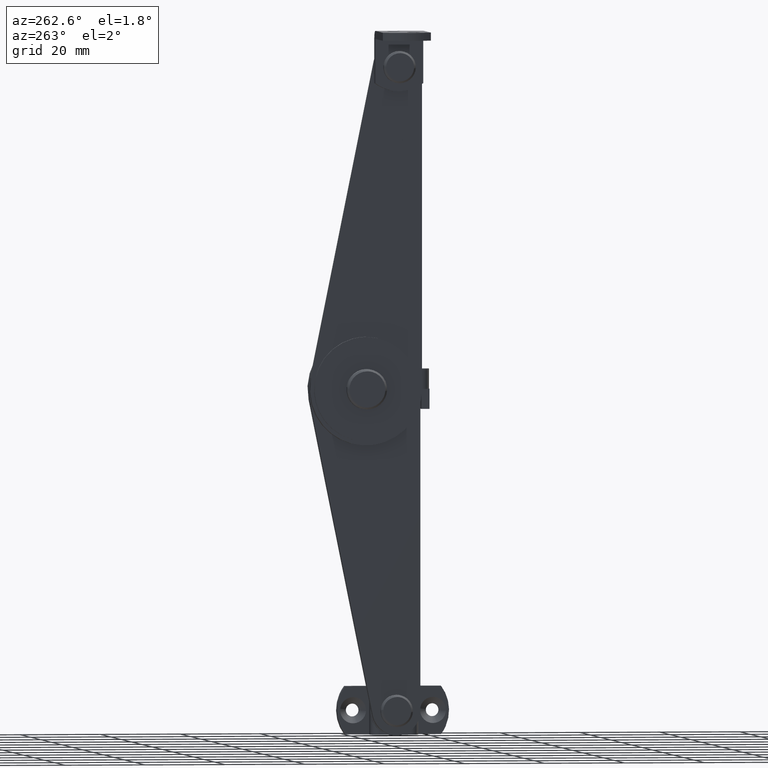
[diagram: clean part render]
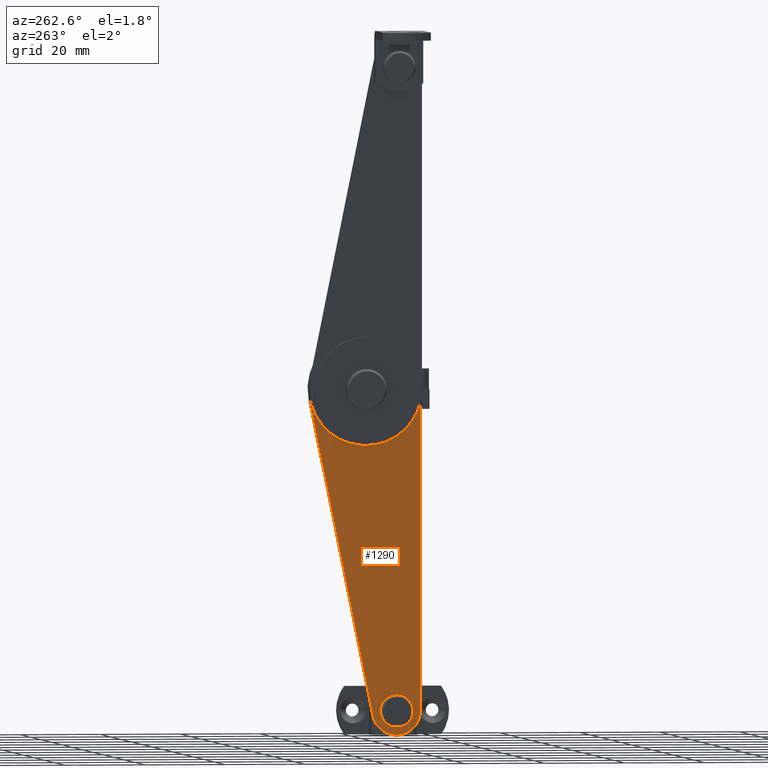
[diagram: same view with one face highlighted and labeled with its STEP entity id]
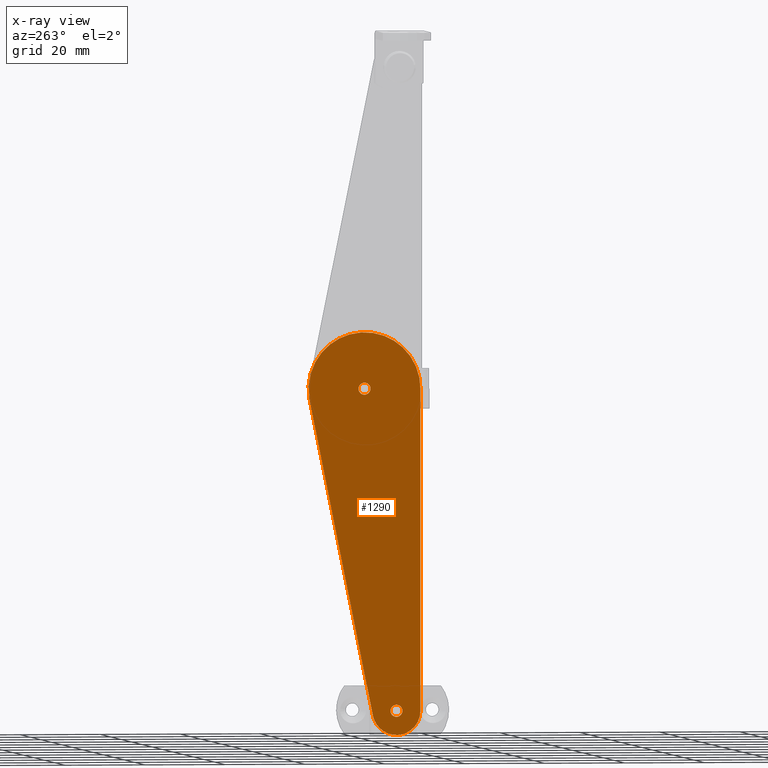
[diagram: x-ray of the same camera — body ghosted, the highlighted face saturated]
A machine part, auxiliary view. The second image highlights one B-rep face of the part: STEP entity #1290.
The next image is the same camera in x-ray: the body ghosted, the highlighted face saturated — about 0% of this face is hidden behind the body in this view.
In plain terms, the highlighted face is a freeform B-spline surface patch.
Its self-contained STEP definition (entity closure, byte-faithful):
#712=CARTESIAN_POINT('',(-8.500000000000000,1.497202197493665,-80.091572811577123));
#713=VERTEX_POINT('',#712);
#719=CARTESIAN_POINT('',(-8.500000000000000,0.0,-81.500000000000000));
#720=VERTEX_POINT('',#719);
#721=CARTESIAN_POINT('',(-8.500000000000000,0.0,-81.500000000000000));
#722=CARTESIAN_POINT('',(-8.500000000000002,1.411059096062622,-81.500000000000000));
#723=CARTESIAN_POINT('',(-8.500000000000000,1.497202197493665,-80.091572811577123));
#731=(BOUNDED_CURVE()B_SPLINE_CURVE(2,(#721,#722,#723),.UNSPECIFIED.,.F.,.U.)B_SPLINE_CURVE_WITH_KNOTS((3,3),(0.500000000000000,0.739332961717635),.UNSPECIFIED.)CURVE()GEOMETRIC_REPRESENTATION_ITEM()RATIONAL_B_SPLINE_CURVE((1.0,0.719603993897460,0.976072040549457))REPRESENTATION_ITEM(''));
#732=EDGE_CURVE('',#720,#713,#731,.T.);
#734=CARTESIAN_POINT('',(-8.500000000000000,-1.489514284250863,-79.822948603471644));
#735=VERTEX_POINT('',#734);
#736=CARTESIAN_POINT('',(-8.500000000000000,-1.489514284250863,-79.822948603471644));
#737=CARTESIAN_POINT('',(-8.500000000000000,-1.500000000000001,-79.911163775508015));
#738=CARTESIAN_POINT('',(-8.500000000000000,-1.500000000000000,-80.0));
#739=CARTESIAN_POINT('',(-8.500000000000002,-1.500000000000000,-81.500000000000000));
#740=CARTESIAN_POINT('',(-8.500000000000000,0.0,-81.500000000000000));
#748=(BOUNDED_CURVE()B_SPLINE_CURVE(2,(#736,#737,#738,#739,#740),.UNSPECIFIED.,.F.,.U.)B_SPLINE_CURVE_WITH_KNOTS((3,2,3),(0.229562463407722,0.250000000000000,0.500000000000000),.UNSPECIFIED.)CURVE()GEOMETRIC_REPRESENTATION_ITEM()RATIONAL_B_SPLINE_CURVE((0.956026734375946,0.976055936491480,1.0,0.707106781186548,1.0))REPRESENTATION_ITEM(''));
#749=EDGE_CURVE('',#735,#720,#748,.T.);
#793=CARTESIAN_POINT('',(-8.500000000000000,0.0,-78.500000000000000));
#794=VERTEX_POINT('',#793);
#795=CARTESIAN_POINT('',(-8.500000000000000,0.0,-78.500000000000000));
#796=CARTESIAN_POINT('',(-8.500000000000002,-1.332261708684824,-78.499999999999986));
#797=CARTESIAN_POINT('',(-8.500000000000000,-1.489514284250863,-79.822948603471644));
#805=(BOUNDED_CURVE()B_SPLINE_CURVE(2,(#795,#796,#797),.UNSPECIFIED.,.F.,.U.)B_SPLINE_CURVE_WITH_KNOTS((3,3),(0.0,0.229562463407722),.UNSPECIFIED.)CURVE()GEOMETRIC_REPRESENTATION_ITEM()RATIONAL_B_SPLINE_CURVE((1.0,0.731050844695067,0.956026734375946))REPRESENTATION_ITEM(''));
#806=EDGE_CURVE('',#794,#735,#805,.T.);
#808=CARTESIAN_POINT('',(-8.500000000000000,1.497202197493665,-80.091572811577123));
#809=CARTESIAN_POINT('',(-8.500000000000002,1.500000000000000,-80.045829147229085));
#810=CARTESIAN_POINT('',(-8.500000000000000,1.500000000000000,-80.0));
#811=CARTESIAN_POINT('',(-8.500000000000002,1.500000000000000,-78.500000000000000));
#812=CARTESIAN_POINT('',(-8.500000000000000,0.0,-78.500000000000000));
#820=(BOUNDED_CURVE()B_SPLINE_CURVE(2,(#808,#809,#810,#811,#812),.UNSPECIFIED.,.F.,.U.)B_SPLINE_CURVE_WITH_KNOTS((3,2,3),(0.739332961717635,0.750000000000000,1.0),.UNSPECIFIED.)CURVE()GEOMETRIC_REPRESENTATION_ITEM()RATIONAL_B_SPLINE_CURVE((0.976072040549456,0.987502787289087,1.0,0.707106781186548,1.0))REPRESENTATION_ITEM(''));
#821=EDGE_CURVE('',#713,#794,#820,.T.);
#898=CARTESIAN_POINT('',(-8.500000000000000,9.497202197493667,-0.091572811577117));
#899=VERTEX_POINT('',#898);
#905=CARTESIAN_POINT('',(-8.500000000000000,8.0,-1.500000000000000));
#906=VERTEX_POINT('',#905);
#907=CARTESIAN_POINT('',(-8.500000000000000,8.0,-1.500000000000000));
#908=CARTESIAN_POINT('',(-8.500000000000000,9.411059096062640,-1.500000000000000));
#909=CARTESIAN_POINT('',(-8.500000000000000,9.497202197493667,-0.091572811577117));
#917=(BOUNDED_CURVE()B_SPLINE_CURVE(2,(#907,#908,#909),.UNSPECIFIED.,.F.,.U.)B_SPLINE_CURVE_WITH_KNOTS((3,3),(0.500000000000000,0.739332961717638),.UNSPECIFIED.)CURVE()GEOMETRIC_REPRESENTATION_ITEM()RATIONAL_B_SPLINE_CURVE((1.0,0.719603993897457,0.976072040549461))REPRESENTATION_ITEM(''));
#918=EDGE_CURVE('',#906,#899,#917,.T.);
#920=CARTESIAN_POINT('',(-8.500000000000000,6.510485715749137,0.177051396528347));
#921=VERTEX_POINT('',#920);
#922=CARTESIAN_POINT('',(-8.500000000000000,6.510485715749137,0.177051396528347));
#923=CARTESIAN_POINT('',(-8.500000000000000,6.500000000000001,0.088836224491979));
#924=CARTESIAN_POINT('',(-8.500000000000000,6.500000000000001,4.898425E-016));
#925=CARTESIAN_POINT('',(-8.500000000000002,6.500000000000003,-1.500000000000000));
#926=CARTESIAN_POINT('',(-8.500000000000000,8.0,-1.500000000000000));
#934=(BOUNDED_CURVE()B_SPLINE_CURVE(2,(#922,#923,#924,#925,#926),.UNSPECIFIED.,.F.,.U.)B_SPLINE_CURVE_WITH_KNOTS((3,2,3),(0.229562463407722,0.250000000000000,0.500000000000000),.UNSPECIFIED.)CURVE()GEOMETRIC_REPRESENTATION_ITEM()RATIONAL_B_SPLINE_CURVE((0.956026734375947,0.976055936491480,1.0,0.707106781186548,1.0))REPRESENTATION_ITEM(''));
#935=EDGE_CURVE('',#921,#906,#934,.T.);
#979=CARTESIAN_POINT('',(-8.500000000000000,8.0,1.500000000000000));
#980=VERTEX_POINT('',#979);
#981=CARTESIAN_POINT('',(-8.500000000000000,8.0,1.500000000000000));
#982=CARTESIAN_POINT('',(-8.500000000000000,6.667738291315176,1.500000000000001));
#983=CARTESIAN_POINT('',(-8.500000000000000,6.510485715749137,0.177051396528347));
#991=(BOUNDED_CURVE()B_SPLINE_CURVE(2,(#981,#982,#983),.UNSPECIFIED.,.F.,.U.)B_SPLINE_CURVE_WITH_KNOTS((3,3),(0.0,0.229562463407722),.UNSPECIFIED.)CURVE()GEOMETRIC_REPRESENTATION_ITEM()RATIONAL_B_SPLINE_CURVE((1.0,0.731050844695067,0.956026734375947))REPRESENTATION_ITEM(''));
#992=EDGE_CURVE('',#980,#921,#991,.T.);
#994=CARTESIAN_POINT('',(-8.500000000000000,9.497202197493667,-0.091572811577117));
#995=CARTESIAN_POINT('',(-8.500000000000002,9.500000000000002,-0.045829147229093));
#996=CARTESIAN_POINT('',(-8.500000000000000,9.500000000000000,4.898425E-016));
#997=CARTESIAN_POINT('',(-8.500000000000002,9.500000000000000,1.500000000000001));
#998=CARTESIAN_POINT('',(-8.500000000000000,8.0,1.500000000000000));
#1006=(BOUNDED_CURVE()B_SPLINE_CURVE(2,(#994,#995,#996,#997,#998),.UNSPECIFIED.,.F.,.U.)B_SPLINE_CURVE_WITH_KNOTS((3,2,3),(0.739332961717637,0.750000000000000,1.0),.UNSPECIFIED.)CURVE()GEOMETRIC_REPRESENTATION_ITEM()RATIONAL_B_SPLINE_CURVE((0.976072040549460,0.987502787289090,1.0,0.707106781186548,1.0))REPRESENTATION_ITEM(''));
#1007=EDGE_CURVE('',#899,#980,#1006,.T.);
#1130=CARTESIAN_POINT('',(-8.500000000000000,-6.000000000000110,-5.0));
#1131=VERTEX_POINT('',#1130);
#1132=CARTESIAN_POINT('',(-8.500000000000000,-6.0,-5.288801E-015));
#1133=VERTEX_POINT('',#1132);
#1134=CARTESIAN_POINT('',(-8.500000000000000,-6.000000000000110,-5.0));
#1135=CARTESIAN_POINT('',(-8.500000000000000,-6.0,-5.288801E-015));
#1136=QUASI_UNIFORM_CURVE('',1,(#1134,#1135),.UNSPECIFIED.,.F.,.U.);
#1137=EDGE_CURVE('',#1131,#1133,#1136,.T.);
#1222=CARTESIAN_POINT('',(-8.500000000000000,-7.398435637660045,18.994134648643868));
#1223=CARTESIAN_POINT('',(-8.500000000000000,23.395146937282551,18.994134648643868));
#1224=CARTESIAN_POINT('',(-8.500000000000000,-7.398435637660045,-90.994915500843646));
#1225=CARTESIAN_POINT('',(-8.500000000000000,23.395146937282551,-90.994915500843646));
#1226=B_SPLINE_SURFACE_WITH_KNOTS('',1,1,((#1222,#1224),(#1223,#1225)),.UNSPECIFIED.,.F.,.F.,.U.,(2,2),(2,2),(0.0,30.793582574942601),(0.0,109.989050149487500),.UNSPECIFIED.);
#1227=CARTESIAN_POINT('',(-8.500000000000000,-6.000000000000110,-79.999983999999898));
#1228=VERTEX_POINT('',#1227);
#1229=CARTESIAN_POINT('',(-8.500000000000000,-6.000000000000110,-5.0));
#1230=CARTESIAN_POINT('',(-8.500000000000000,-6.000000000000110,-79.999983999999898));
#1231=QUASI_UNIFORM_CURVE('',1,(#1229,#1230),.UNSPECIFIED.,.F.,.U.);
#1232=EDGE_CURVE('',#1131,#1228,#1231,.T.);
#1233=ORIENTED_EDGE('',*,*,#1232,.F.);
#1234=ORIENTED_EDGE('',*,*,#1137,.T.);
#1235=CARTESIAN_POINT('',(-8.500000000000000,21.717654369736650,-2.797491482104180));
#1236=VERTEX_POINT('',#1235);
#1237=CARTESIAN_POINT('',(-8.500000000000000,21.717654369736628,-2.797491482104177));
#1238=CARTESIAN_POINT('',(-8.500000000000000,23.460367806835894,5.748000344609852));
#1239=CARTESIAN_POINT('',(-8.500000000000000,16.558346955534638,11.079471891236111));
#1240=CARTESIAN_POINT('',(-8.500000000000000,9.656326104233390,16.410943437862361));
#1241=CARTESIAN_POINT('',(-8.500000000000000,1.828163052116696,12.566162050870680));
#1242=CARTESIAN_POINT('',(-8.500000000000000,-5.999999999999999,8.721380663879009));
#1243=CARTESIAN_POINT('',(-8.500000000000000,-6.0,4.898425E-016));
#1251=(BOUNDED_CURVE()B_SPLINE_CURVE(2,(#1237,#1238,#1239,#1240,#1241,#1242,#1243),.UNSPECIFIED.,.F.,.U.)B_SPLINE_CURVE_WITH_KNOTS((3,2,2,3),(0.0,0.333333333333333,0.666666666666667,1.0),.UNSPECIFIED.)CURVE()GEOMETRIC_REPRESENTATION_ITEM()RATIONAL_B_SPLINE_CURVE((1.0,0.848777207598489,1.0,0.848777207598489,1.0,0.848777207598489,1.0))REPRESENTATION_ITEM(''));
#1252=EDGE_CURVE('',#1236,#1133,#1251,.T.);
#1253=ORIENTED_EDGE('',*,*,#1252,.F.);
#1254=CARTESIAN_POINT('',(-8.500000000000000,5.878711889223000,-81.200295011158303));
#1255=VERTEX_POINT('',#1254);
#1256=CARTESIAN_POINT('',(-8.500000000000000,5.878711889223000,-81.200295011158303));
#1257=CARTESIAN_POINT('',(-8.500000000000000,21.717654369736650,-2.797491482104180));
#1258=QUASI_UNIFORM_CURVE('',1,(#1256,#1257),.UNSPECIFIED.,.F.,.U.);
#1259=EDGE_CURVE('',#1255,#1236,#1258,.T.);
#1260=ORIENTED_EDGE('',*,*,#1259,.F.);
#1261=CARTESIAN_POINT('',(-8.500000000000000,-6.0,-79.999983999999898));
#1262=CARTESIAN_POINT('',(-8.500000000000000,-6.000000000000001,-85.424254417550614));
#1263=CARTESIAN_POINT('',(-8.500000000000000,-0.603211681195740,-85.969584963855780));
#1264=CARTESIAN_POINT('',(-8.500000000000000,4.793576637608520,-86.514915510160961));
#1265=CARTESIAN_POINT('',(-8.500000000000000,5.878711889223003,-81.200295011158303));
#1273=(BOUNDED_CURVE()B_SPLINE_CURVE(2,(#1261,#1262,#1263,#1264,#1265),.UNSPECIFIED.,.F.,.U.)B_SPLINE_CURVE_WITH_KNOTS((3,2,3),(0.0,0.500000000000000,1.0),.UNSPECIFIED.)CURVE()GEOMETRIC_REPRESENTATION_ITEM()RATIONAL_B_SPLINE_CURVE((1.0,0.741800269681567,1.0,0.741800269681567,1.0))REPRESENTATION_ITEM(''));
#1274=EDGE_CURVE('',#1228,#1255,#1273,.T.);
#1275=ORIENTED_EDGE('',*,*,#1274,.F.);
#1276=EDGE_LOOP('',(#1233,#1234,#1253,#1260,#1275));
#1277=FACE_OUTER_BOUND('',#1276,.T.);
#1278=ORIENTED_EDGE('',*,*,#918,.T.);
#1279=ORIENTED_EDGE('',*,*,#1007,.T.);
#1280=ORIENTED_EDGE('',*,*,#992,.T.);
#1281=ORIENTED_EDGE('',*,*,#935,.T.);
#1282=EDGE_LOOP('',(#1278,#1279,#1280,#1281));
#1283=FACE_BOUND('',#1282,.T.);
#1284=ORIENTED_EDGE('',*,*,#732,.T.);
#1285=ORIENTED_EDGE('',*,*,#821,.T.);
#1286=ORIENTED_EDGE('',*,*,#806,.T.);
#1287=ORIENTED_EDGE('',*,*,#749,.T.);
#1288=EDGE_LOOP('',(#1284,#1285,#1286,#1287));
#1289=FACE_BOUND('',#1288,.T.);
#1290=ADVANCED_FACE('',(#1277,#1283,#1289),#1226,.T.);